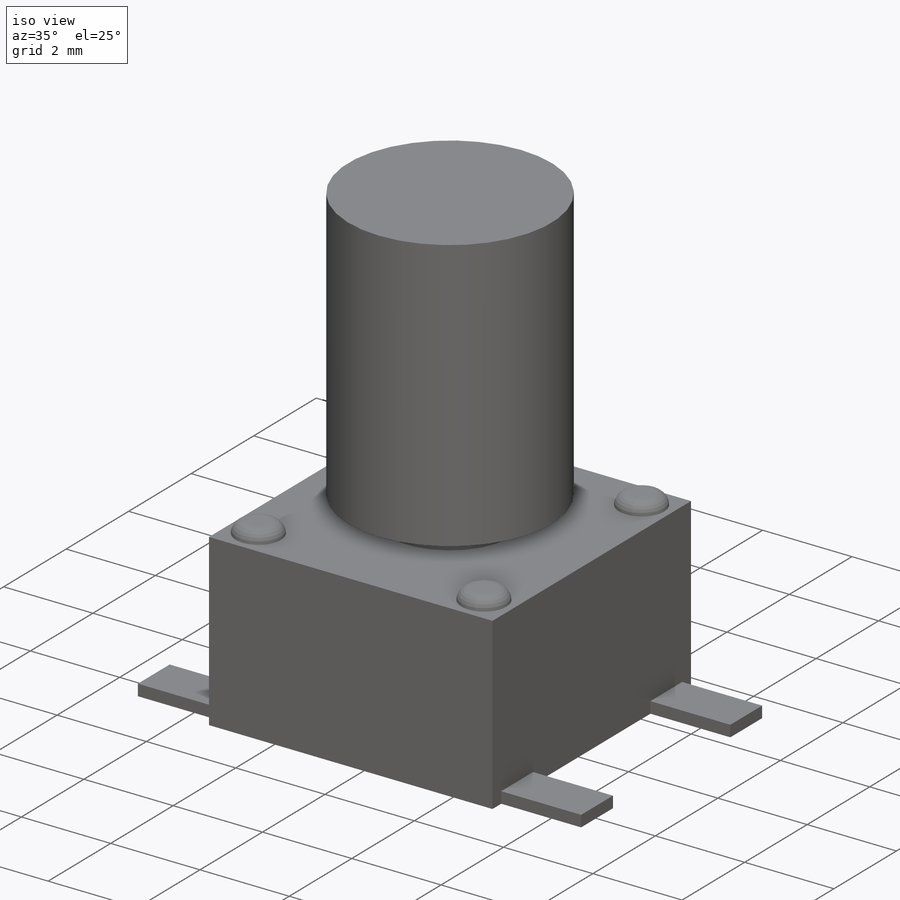
[diagram: iso view]
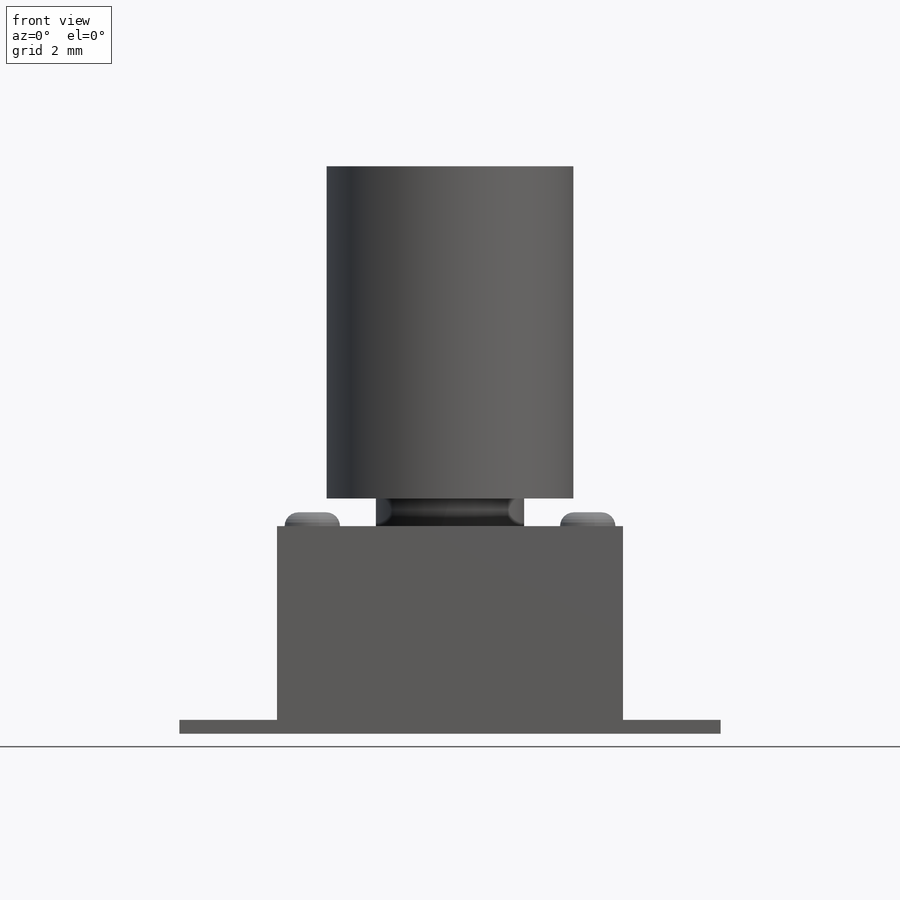
[diagram: front view]
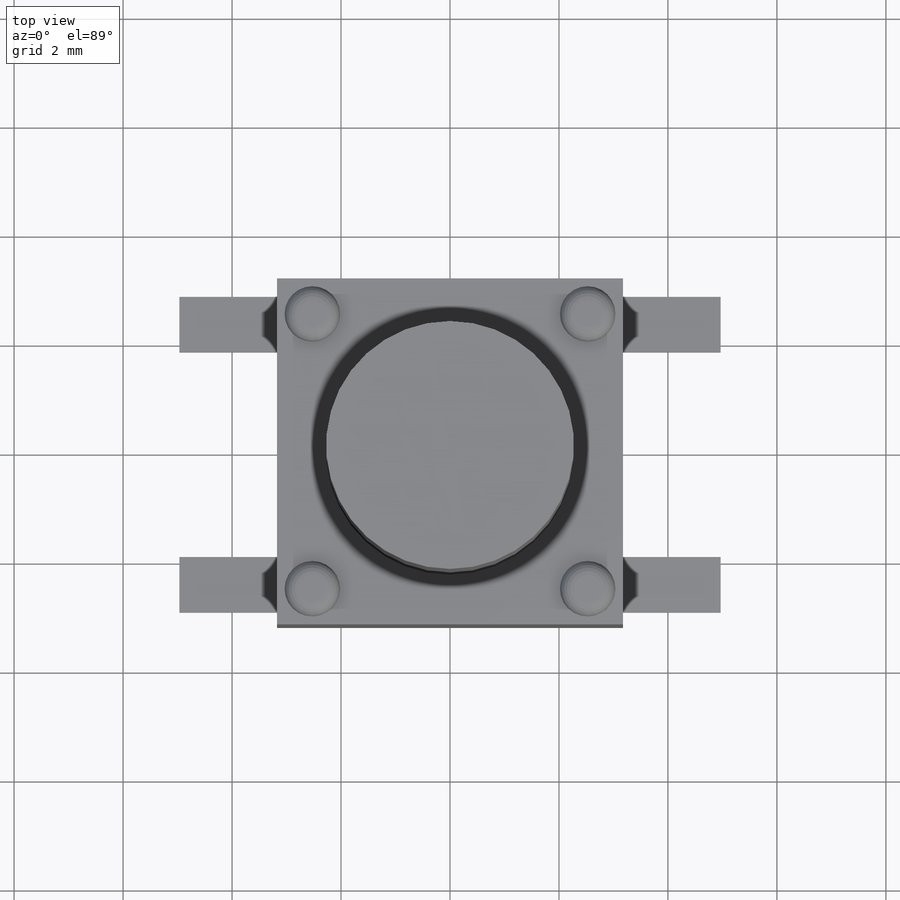
[diagram: top view]
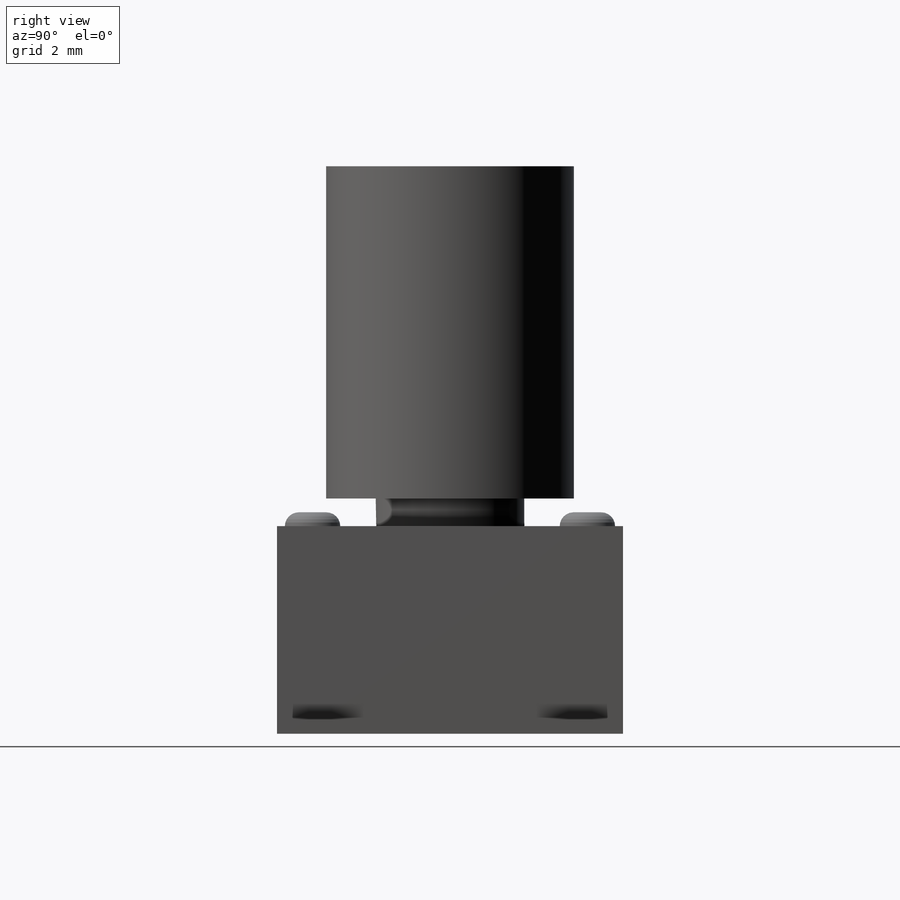
[diagram: right view]
SOLIDWORKS PART (.sldprt)
format: sldprt  version: not decoded by parser v0  size: 207,872 bytes
history: native  units: mm
features: sketch x5, extrude x5, material x1, fillet x1 (+11 scaffold rows collapsed)
feature tree (23):
  scaffold x11  (default folders/planes/origin — collapsed)
  material  "Material <not specified>"
  sketch  "Sketch1"  dims[D1=6.35mm]
  extrude  "Boss-Extrude1"  Depth=3.81mm
  sketch  "Sketch2"  dims[D1=0.6477mm]
  extrude  "Boss-Extrude2"  Depth=0.254mm
  sketch  "Sketch3"  dims[D1=~0.391937mm]
  extrude  "Boss-Extrude3"  Depth=0.254mm
  fillet  "Fillet1"  Radius=0.254mm
  sketch  "Sketch4"
  extrude  "Boss-Extrude4"  Depth=0.508mm
  sketch  "Sketch5"  dims[D1=~2.495605mm]
  extrude  "Boss-Extrude5"  Depth=6.096mm
decode coverage: 10 of 11 modeling features carry decoded parameters
note: ~ marks probable driven/reference dimensions
note: suppression state not decoded; provenance and decode notes live in map.json
